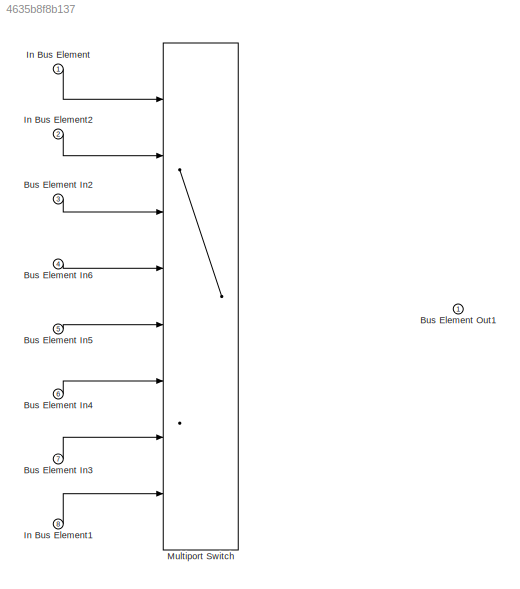
MODEL slx_4635b8f8b137
KIND model
CONFIG AbsTol = auto
CONFIG EnableMultiTasking = off
CONFIG FixedStep = auto
CONFIG MaxStep = auto
CONFIG MinStep = auto
CONFIG RelTol = 1e-3
CONFIG SampleTimeConstraint = Unconstrained
CONFIG Solver = VariableStepAuto
CONFIG SolverName = VariableStepAuto
CONFIG StartTime = 0.0
CONFIG StopTime = 10.0
BLOCK [Inport] Bus Element In2
  Port = 3
BLOCK [Inport] Bus Element In3
  Port = 7
BLOCK [Inport] Bus Element In4
  Port = 6
BLOCK [Inport] Bus Element In5
  Port = 5
BLOCK [Inport] Bus Element In6
  Port = 4
BLOCK [Outport] Bus Element Out1
BLOCK [Inport] In Bus Element
BLOCK [Inport] In Bus Element1
  Port = 8
BLOCK [Inport] In Bus Element2
  Port = 2
BLOCK [MultiPortSwitch] Multiport Switch
  InputSameDT = off
  Inputs = 7
  Ports = [8, 1]
  SaturateOnIntegerOverflow = off
LINE Bus Element In2:1 -> Multiport Switch:3
LINE Bus Element In3:1 -> Multiport Switch:7
LINE Bus Element In4:1 -> Multiport Switch:6
LINE Bus Element In5:1 -> Multiport Switch:5
LINE Bus Element In6:1 -> Multiport Switch:4
LINE In Bus Element1:1 -> Multiport Switch:8
LINE In Bus Element2:1 -> Multiport Switch:2
LINE In Bus Element:1 -> Multiport Switch:1
